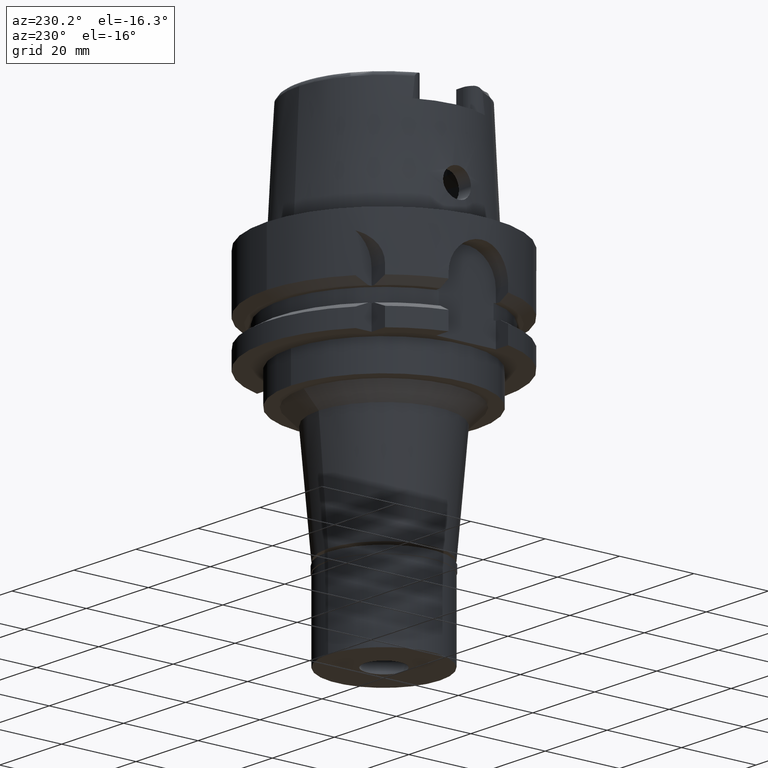
[diagram: clean part render]
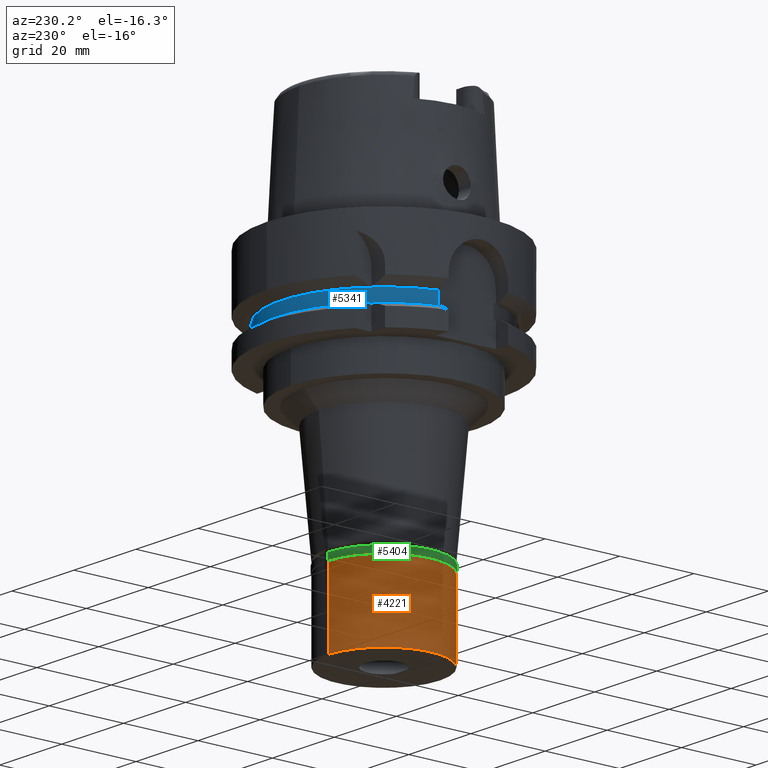
[diagram: same view with three faces highlighted in distinct colors, each labeled with its STEP entity id]
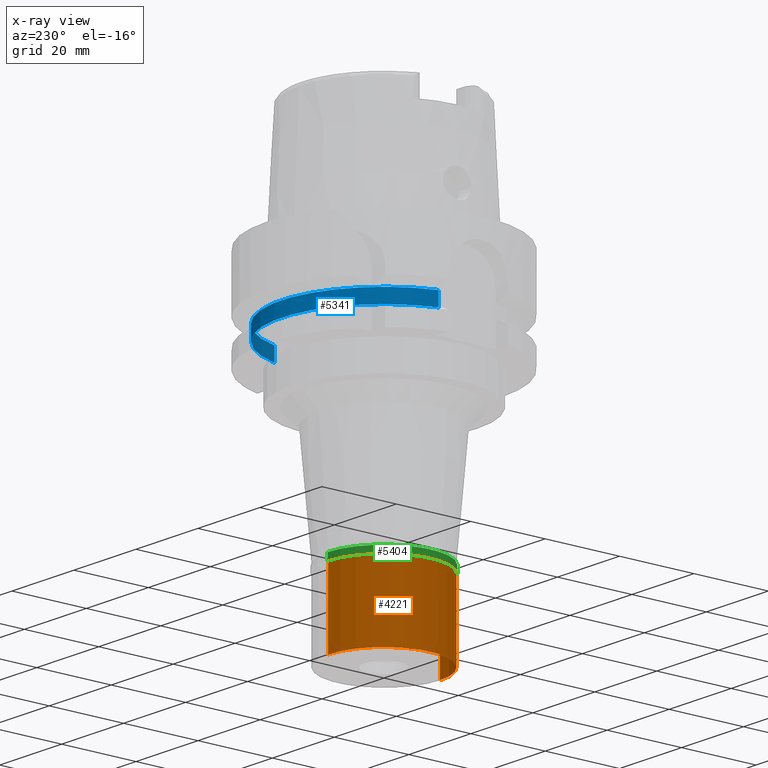
[diagram: x-ray of the same camera — body ghosted, the three highlighted faces saturated]
A machine part, auxiliary view with three faces highlighted in distinct colors.
The next image is the same camera in x-ray (body ghosted, the three faces saturated) — at least one of them is partly hidden behind the body in this view.
Their STEP definitions:

[orange] entity #4221 — the highlighted cylindrical surface (partial cylindrical patch) has radius 15 mm, axis along (0, 0, -1).
#269 = DIRECTION ( 'NONE',  ( 0.0000000000000000000, 0.0000000000000000000, -1.000000000000000000 ) ) ;
#272 = VERTEX_POINT ( 'NONE', #2258 ) ;
#334 = DIRECTION ( 'NONE',  ( 0.0000000000000000000, 0.0000000000000000000, -1.000000000000000000 ) ) ;
#419 = CARTESIAN_POINT ( 'NONE',  ( 0.0000000000000000000, -15.00000000000000000, -22.00000000000000000 ) ) ;
#585 = DIRECTION ( 'NONE',  ( 0.0000000000000000000, 0.0000000000000000000, -1.000000000000000000 ) ) ;
#851 = AXIS2_PLACEMENT_3D ( 'NONE', #3437, #3070, #1653 ) ;
#904 = ORIENTED_EDGE ( 'NONE', *, *, #4453, .T. ) ;
#1270 = ORIENTED_EDGE ( 'NONE', *, *, #2903, .T. ) ;
#1307 = CIRCLE ( 'NONE', #851, 15.00000000000000000 ) ;
#1641 = DIRECTION ( 'NONE',  ( 0.0000000000000000000, -1.000000000000000000, 0.0000000000000000000 ) ) ;
#1653 = DIRECTION ( 'NONE',  ( 0.0000000000000000000, 1.000000000000000000, 0.0000000000000000000 ) ) ;
#1726 = VERTEX_POINT ( 'NONE', #2476 ) ;
#1810 = EDGE_CURVE ( 'NONE', #1726, #272, #2735, .T. ) ;
#1861 = VERTEX_POINT ( 'NONE', #4789 ) ;
#2067 = FACE_OUTER_BOUND ( 'NONE', #3345, .T. ) ;
#2258 = CARTESIAN_POINT ( 'NONE',  ( 0.0000000000000000000, 15.00000000000000000, -22.00000000000000000 ) ) ;
#2283 = VECTOR ( 'NONE', #334, 1000.000000000000000 ) ;
#2431 = LINE ( 'NONE', #4215, #2283 ) ;
#2476 = CARTESIAN_POINT ( 'NONE',  ( 0.0000000000000000000, 15.00000000000000000, -2.000000000000000000 ) ) ;
#2555 = CIRCLE ( 'NONE', #4550, 15.00000000000000000 ) ;
#2558 = VECTOR ( 'NONE', #4479, 1000.000000000000000 ) ;
#2735 = LINE ( 'NONE', #3152, #2558 ) ;
#2791 = DIRECTION ( 'NONE',  ( 0.0000000000000000000, -1.000000000000000000, 0.0000000000000000000 ) ) ;
#2903 = EDGE_CURVE ( 'NONE', #272, #4297, #1307, .T. ) ;
#3070 = DIRECTION ( 'NONE',  ( 0.0000000000000000000, 0.0000000000000000000, 1.000000000000000000 ) ) ;
#3152 = CARTESIAN_POINT ( 'NONE',  ( 0.0000000000000000000, 15.00000000000000000, -2.000000000000000000 ) ) ;
#3223 = CARTESIAN_POINT ( 'NONE',  ( 0.0000000000000000000, 0.0000000000000000000, -2.000000000000000000 ) ) ;
#3345 = EDGE_LOOP ( 'NONE', ( #1270, #4291, #904, #4575 ) ) ;
#3437 = CARTESIAN_POINT ( 'NONE',  ( 0.0000000000000000000, 0.0000000000000000000, -22.00000000000000000 ) ) ;
#4156 = CYLINDRICAL_SURFACE ( 'NONE', #4738, 15.00000000000000000 ) ;
#4213 = EDGE_CURVE ( 'NONE', #1861, #4297, #2431, .T. ) ;
#4215 = CARTESIAN_POINT ( 'NONE',  ( 0.0000000000000000000, -15.00000000000000000, -2.000000000000000000 ) ) ;
#4221 = ADVANCED_FACE ( 'NONE', ( #2067 ), #4156, .T. ) ;
#4291 = ORIENTED_EDGE ( 'NONE', *, *, #4213, .F. ) ;
#4297 = VERTEX_POINT ( 'NONE', #419 ) ;
#4453 = EDGE_CURVE ( 'NONE', #1861, #1726, #2555, .T. ) ;
#4479 = DIRECTION ( 'NONE',  ( 0.0000000000000000000, 0.0000000000000000000, -1.000000000000000000 ) ) ;
#4550 = AXIS2_PLACEMENT_3D ( 'NONE', #3223, #585, #2791 ) ;
#4575 = ORIENTED_EDGE ( 'NONE', *, *, #1810, .T. ) ;
#4738 = AXIS2_PLACEMENT_3D ( 'NONE', #5534, #269, #1641 ) ;
#4789 = CARTESIAN_POINT ( 'NONE',  ( 0.0000000000000000000, -15.00000000000000000, -2.000000000000000000 ) ) ;
#5534 = CARTESIAN_POINT ( 'NONE',  ( 0.0000000000000000000, 0.0000000000000000000, 0.0000000000000000000 ) ) ;

[blue] entity #5341 — the highlighted cylindrical surface (partial cylindrical patch) has radius 27.5 mm, axis along (0, 0, 1).
#7 = DIRECTION ( 'NONE',  ( 0.0000000000000000000, 0.0000000000000000000, 1.000000000000000000 ) ) ;
#349 = CARTESIAN_POINT ( 'NONE',  ( 26.50000000000000000, 7.348469228349999938, -16.12500000000000000 ) ) ;
#370 = FACE_OUTER_BOUND ( 'NONE', #5465, .T. ) ;
#553 = DIRECTION ( 'NONE',  ( 0.0000000000000000000, 1.000000000000000000, 0.0000000000000000000 ) ) ;
#838 = AXIS2_PLACEMENT_3D ( 'NONE', #4445, #5352, #553 ) ;
#951 = VECTOR ( 'NONE', #3500, 1000.000000000000000 ) ;
#1202 = CIRCLE ( 'NONE', #2466, 27.50000000000001066 ) ;
#1225 = DIRECTION ( 'NONE',  ( 0.0000000000000000000, 0.0000000000000000000, 1.000000000000000000 ) ) ;
#1514 = ORIENTED_EDGE ( 'NONE', *, *, #3822, .T. ) ;
#1537 = DIRECTION ( 'NONE',  ( 0.0000000000000000000, 0.0000000000000000000, 1.000000000000000000 ) ) ;
#1654 = CYLINDRICAL_SURFACE ( 'NONE', #3208, 27.50000000000000000 ) ;
#1855 = LINE ( 'NONE', #1879, #951 ) ;
#1879 = CARTESIAN_POINT ( 'NONE',  ( -26.50000000000000000, 7.348469228349999938, -16.12500000000000000 ) ) ;
#2016 = CARTESIAN_POINT ( 'NONE',  ( 0.0000000000000000000, 0.0000000000000000000, -19.87500000000000000 ) ) ;
#2160 = DIRECTION ( 'NONE',  ( 0.0000000000000000000, 1.000000000000000000, 0.0000000000000000000 ) ) ;
#2466 = AXIS2_PLACEMENT_3D ( 'NONE', #2016, #1537, #3660 ) ;
#3208 = AXIS2_PLACEMENT_3D ( 'NONE', #5143, #7, #2160 ) ;
#3368 = ORIENTED_EDGE ( 'NONE', *, *, #4569, .T. ) ;
#3500 = DIRECTION ( 'NONE',  ( 0.0000000000000000000, 0.0000000000000000000, -1.000000000000000000 ) ) ;
#3610 = VERTEX_POINT ( 'NONE', #349 ) ;
#3632 = CARTESIAN_POINT ( 'NONE',  ( -26.50000000000000000, 7.348469228349999938, -19.87500000000000000 ) ) ;
#3660 = DIRECTION ( 'NONE',  ( 0.9636363636363595164, 0.2672170628490889155, 0.0000000000000000000 ) ) ;
#3765 = ORIENTED_EDGE ( 'NONE', *, *, #4135, .F. ) ;
#3804 = VERTEX_POINT ( 'NONE', #4514 ) ;
#3822 = EDGE_CURVE ( 'NONE', #3804, #5042, #1202, .T. ) ;
#4135 = EDGE_CURVE ( 'NONE', #3804, #3610, #4557, .T. ) ;
#4240 = VERTEX_POINT ( 'NONE', #4790 ) ;
#4445 = CARTESIAN_POINT ( 'NONE',  ( 0.0000000000000000000, 0.0000000000000000000, -16.12500000000000000 ) ) ;
#4504 = ORIENTED_EDGE ( 'NONE', *, *, #5442, .F. ) ;
#4514 = CARTESIAN_POINT ( 'NONE',  ( 26.50000000000000000, 7.348469228349999938, -19.87500000000000000 ) ) ;
#4557 = LINE ( 'NONE', #5475, #4914 ) ;
#4569 = EDGE_CURVE ( 'NONE', #4240, #3610, #5464, .T. ) ;
#4790 = CARTESIAN_POINT ( 'NONE',  ( -26.50000000000000000, 7.348469228349999938, -16.12500000000000000 ) ) ;
#4914 = VECTOR ( 'NONE', #1225, 1000.000000000000000 ) ;
#5042 = VERTEX_POINT ( 'NONE', #3632 ) ;
#5143 = CARTESIAN_POINT ( 'NONE',  ( 0.0000000000000000000, 0.0000000000000000000, 0.0000000000000000000 ) ) ;
#5341 = ADVANCED_FACE ( 'NONE', ( #370 ), #1654, .T. ) ;
#5352 = DIRECTION ( 'NONE',  ( 0.0000000000000000000, 0.0000000000000000000, -1.000000000000000000 ) ) ;
#5442 = EDGE_CURVE ( 'NONE', #4240, #5042, #1855, .T. ) ;
#5464 = CIRCLE ( 'NONE', #838, 27.50000000000000000 ) ;
#5465 = EDGE_LOOP ( 'NONE', ( #4504, #3368, #3765, #1514 ) ) ;
#5475 = CARTESIAN_POINT ( 'NONE',  ( 26.50000000000000000, 7.348469228349999938, -19.87500000000000000 ) ) ;

[green] entity #5404 — the highlighted cylindrical surface (partial cylindrical patch) has radius 15.15 mm, axis along (0, 0, -1).
#79 = LINE ( 'NONE', #3485, #2923 ) ;
#246 = ORIENTED_EDGE ( 'NONE', *, *, #4432, .F. ) ;
#579 = EDGE_CURVE ( 'NONE', #2433, #1557, #4571, .T. ) ;
#609 = DIRECTION ( 'NONE',  ( 0.0000000000000000000, 0.0000000000000000000, -1.000000000000000000 ) ) ;
#664 = VERTEX_POINT ( 'NONE', #2931 ) ;
#860 = CARTESIAN_POINT ( 'NONE',  ( 0.0000000000000000000, 0.0000000000000000000, 0.0000000000000000000 ) ) ;
#947 = DIRECTION ( 'NONE',  ( 0.0000000000000000000, 1.000000000000000000, 0.0000000000000000000 ) ) ;
#997 = CARTESIAN_POINT ( 'NONE',  ( 0.0000000000000000000, -15.15000000000000036, -1.850000000000000089 ) ) ;
#1209 = VECTOR ( 'NONE', #609, 1000.000000000000000 ) ;
#1333 = DIRECTION ( 'NONE',  ( 0.0000000000000000000, 0.0000000000000000000, -1.000000000000000000 ) ) ;
#1438 = CARTESIAN_POINT ( 'NONE',  ( 0.0000000000000000000, 15.15000000000000036, 0.0000000000000000000 ) ) ;
#1540 = ORIENTED_EDGE ( 'NONE', *, *, #4006, .T. ) ;
#1557 = VERTEX_POINT ( 'NONE', #1438 ) ;
#1717 = ORIENTED_EDGE ( 'NONE', *, *, #2039, .T. ) ;
#1737 = DIRECTION ( 'NONE',  ( 0.0000000000000000000, -1.000000000000000000, 0.0000000000000000000 ) ) ;
#1744 = EDGE_LOOP ( 'NONE', ( #1540, #246, #2373, #1717 ) ) ;
#1867 = CARTESIAN_POINT ( 'NONE',  ( 0.0000000000000000000, -15.15000000000000036, 0.0000000000000000000 ) ) ;
#2039 = EDGE_CURVE ( 'NONE', #1557, #664, #79, .T. ) ;
#2107 = CARTESIAN_POINT ( 'NONE',  ( 0.0000000000000000000, 0.0000000000000000000, 0.0000000000000000000 ) ) ;
#2133 = FACE_OUTER_BOUND ( 'NONE', #1744, .T. ) ;
#2315 = LINE ( 'NONE', #1867, #1209 ) ;
#2373 = ORIENTED_EDGE ( 'NONE', *, *, #579, .T. ) ;
#2433 = VERTEX_POINT ( 'NONE', #5525 ) ;
#2588 = DIRECTION ( 'NONE',  ( 0.0000000000000000000, 0.0000000000000000000, -1.000000000000000000 ) ) ;
#2731 = AXIS2_PLACEMENT_3D ( 'NONE', #3679, #4830, #947 ) ;
#2923 = VECTOR ( 'NONE', #1333, 1000.000000000000000 ) ;
#2931 = CARTESIAN_POINT ( 'NONE',  ( 0.0000000000000000000, 15.15000000000000036, -1.850000000000000089 ) ) ;
#3485 = CARTESIAN_POINT ( 'NONE',  ( 0.0000000000000000000, 15.15000000000000036, 0.0000000000000000000 ) ) ;
#3679 = CARTESIAN_POINT ( 'NONE',  ( 0.0000000000000000000, 0.0000000000000000000, -1.850000000000000089 ) ) ;
#4006 = EDGE_CURVE ( 'NONE', #664, #5535, #5002, .T. ) ;
#4201 = DIRECTION ( 'NONE',  ( 0.0000000000000000000, 0.0000000000000000000, -1.000000000000000000 ) ) ;
#4307 = AXIS2_PLACEMENT_3D ( 'NONE', #2107, #4201, #5119 ) ;
#4432 = EDGE_CURVE ( 'NONE', #2433, #5535, #2315, .T. ) ;
#4571 = CIRCLE ( 'NONE', #4307, 15.15000000000000036 ) ;
#4659 = AXIS2_PLACEMENT_3D ( 'NONE', #860, #2588, #1737 ) ;
#4746 = CYLINDRICAL_SURFACE ( 'NONE', #4659, 15.15000000000000036 ) ;
#4830 = DIRECTION ( 'NONE',  ( 0.0000000000000000000, 0.0000000000000000000, 1.000000000000000000 ) ) ;
#5002 = CIRCLE ( 'NONE', #2731, 15.15000000000000036 ) ;
#5119 = DIRECTION ( 'NONE',  ( 0.0000000000000000000, -1.000000000000000000, 0.0000000000000000000 ) ) ;
#5404 = ADVANCED_FACE ( 'NONE', ( #2133 ), #4746, .T. ) ;
#5525 = CARTESIAN_POINT ( 'NONE',  ( 0.0000000000000000000, -15.15000000000000036, 0.0000000000000000000 ) ) ;
#5535 = VERTEX_POINT ( 'NONE', #997 ) ;